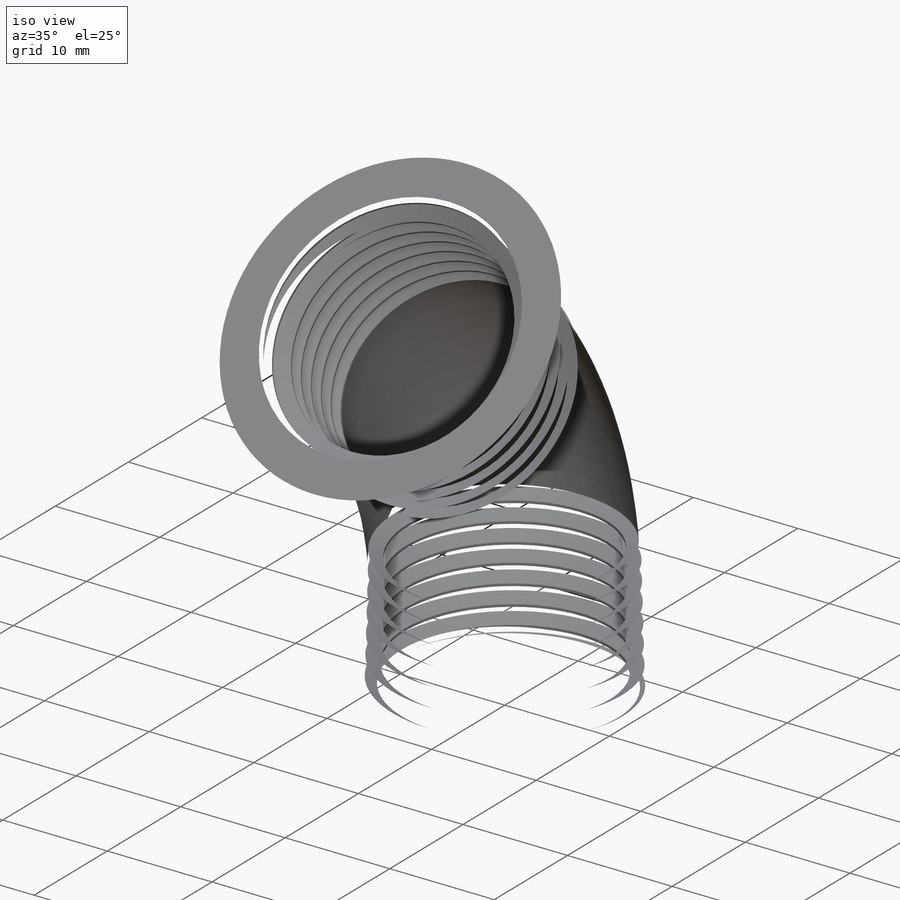
[diagram: iso view]
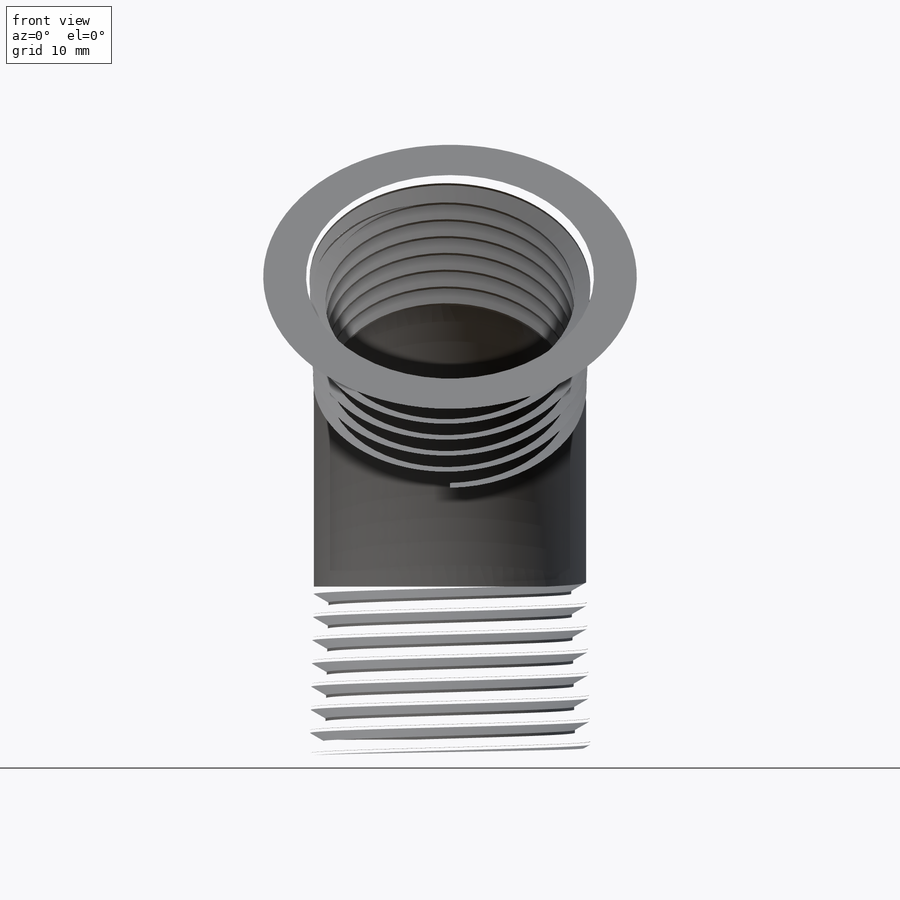
[diagram: front view]
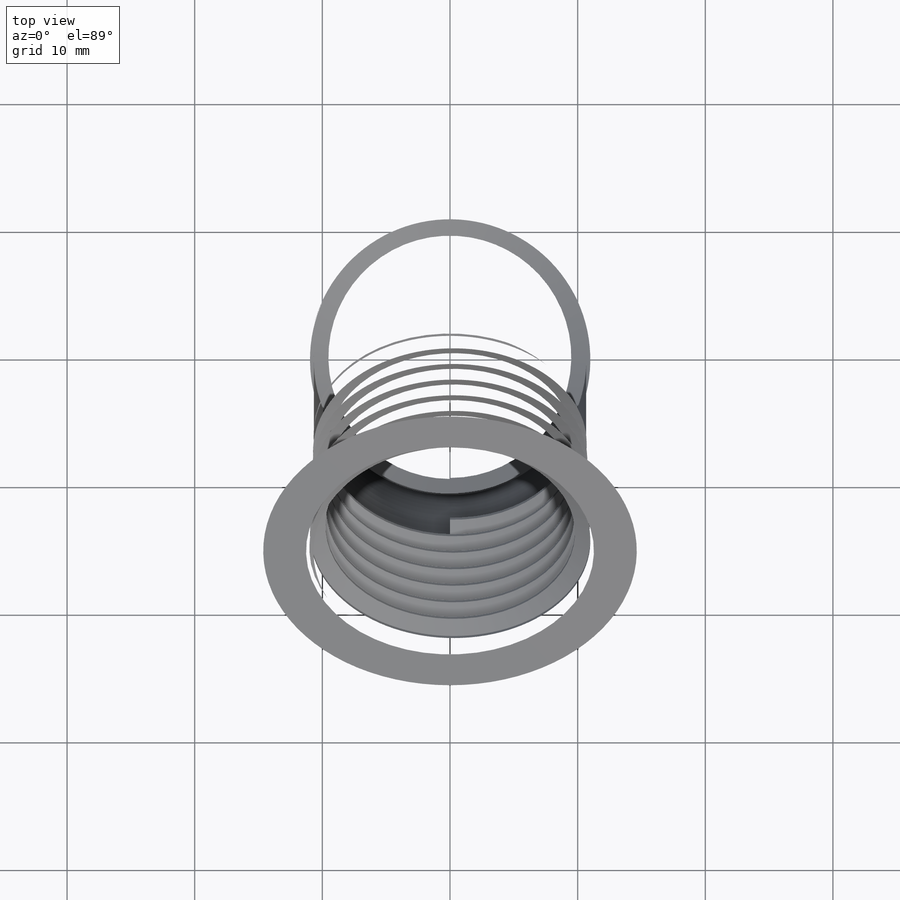
[diagram: top view]
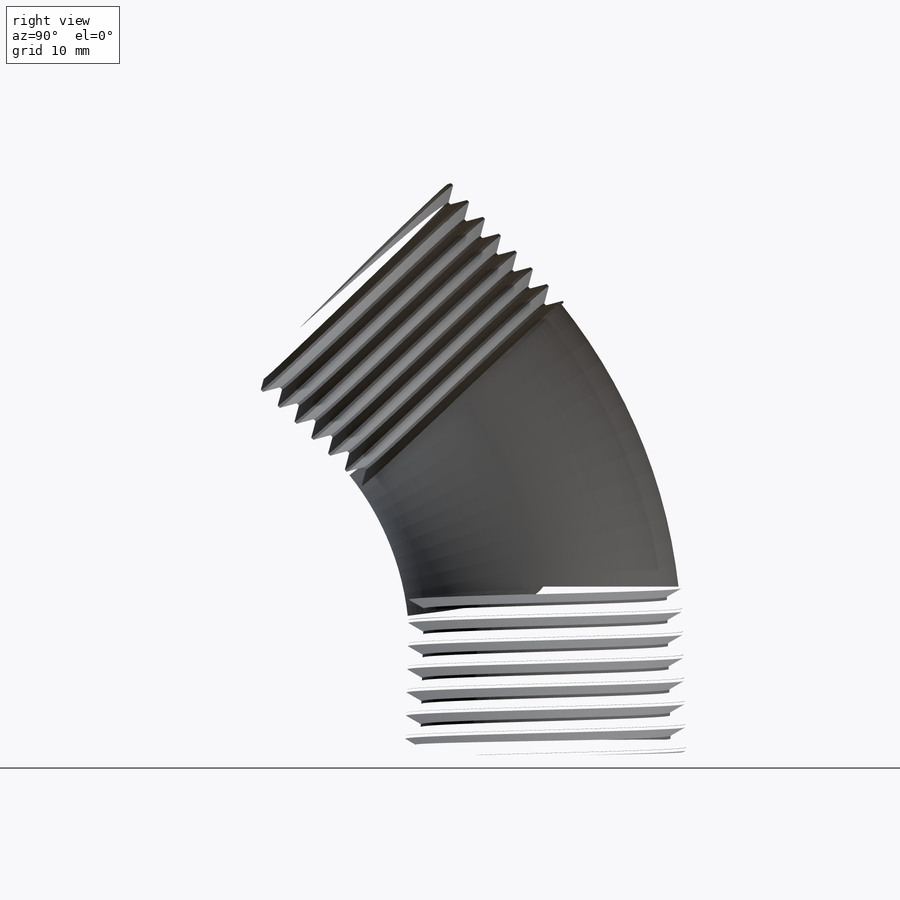
[diagram: right view]
SOLIDWORKS PART (.sldprt)
format: sldprt  version: not decoded by parser v0  size: 1,436,160 bytes
history: native  units: mm
features: sketch x11, sweep x4, plane x3, cut_extrude x3, material x1, helix x1, mirror x1, fillet x1 (+12 scaffold rows collapsed)
feature tree (37):
  scaffold x12  (default folders/planes/origin — collapsed)
  material  "Material <not specified>"
  sketch  "Sketch1"  dims[c1.A=68.58mm c2.A=68.58mm c2.Inside Dia=42.164mm c2.rim height=8.8392mm c2.D1=~50.588429mm c3.D1=45.0deg c3.45 Height=22.098mm c3.D2=30.734mm c3.D3=27.6606mm c4.D1=20.32mm c4.D2=20.32mm]
  sketch  "Sketch2"  dims[c1.D1=31.9532mm c1.D2=21.336mm c1.G=5.334mm c2.D1=5.334mm c2.D2=0.9398mm]
  sweep  "Sweep1"
  sketch  "Sketch3"  dims[outside dia=30.734mm D1=21.336mm]
  sketch  "Sketch4"
  plane  "Plane2"
  plane  "Plane3"
  sweep  "Sweep2"
  sketch  "Sketch5"
  sketch  "Sketch6"  dims[D1=30.734mm D2=21.336mm]
  sweep  "Sweep3"
  plane  "Plane5"  Offset=13.462mm thread engag plane=13.462mm
  sketch  "Sketch25"  dims[pipe od=21.336mm]
  cut_extrude  "Cut-Extrude1"  [1 undecoded]
  sketch  "Sketch26"  dims[D1=0.0mm]
  helix  "Helix/Spiral1"  Pitch=15.276286mm pitch=1.814286mm
  sketch  "Sketch30"  dims[D1=0.254mm]
  sketch  "Sketch27"  dims[c1.D1=~7.21606mm c2.D1=60.0deg c2.D2=~0.226786mm c2.D3=~0.907143mm c2.D4=~2.778125mm c3.D4=3.58deg]
  sweep  "Sweep4"
  sketch  "Sketch28"
  cut_extrude  "Cut-Extrude2"  [1 undecoded]
  cut_extrude  "Cut-Extrude4"  [1 undecoded]
  mirror  "Mirror2"
  fillet  "Fillet1"  Radius=0.7366mm
decode coverage: 10 of 21 modeling features carry decoded parameters
note: ~ marks probable driven/reference dimensions
note: 3 parameter values undecoded
summary: no parameter record found for 3 features; profile_refs inferred from adjacent sketches, not decoded
note: suppression state not decoded; provenance and decode notes live in map.json
